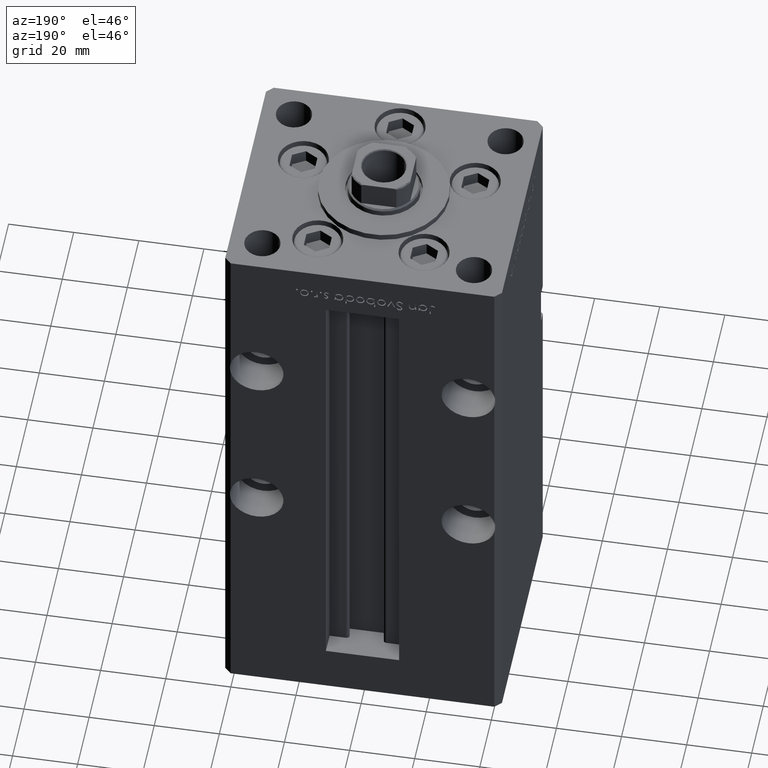
[diagram: clean part render]
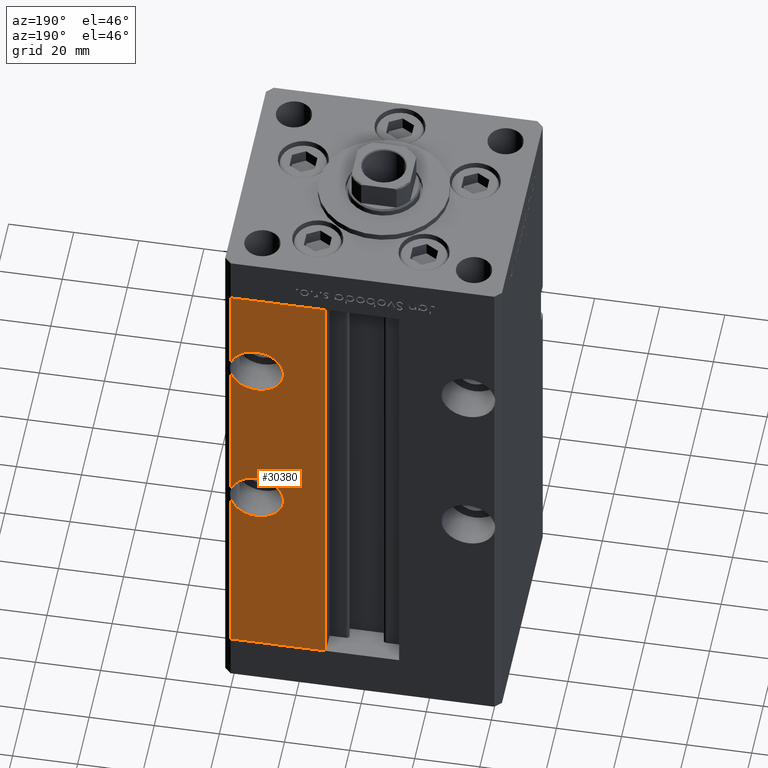
[diagram: same view with one face highlighted and labeled with its STEP entity id]
A machine part, auxiliary view. The second image highlights one B-rep face of the part: STEP entity #30380.
In plain terms, the highlighted planar face has unit normal (0, -1, 0).
Its self-contained STEP definition (entity closure, byte-faithful):
#1361 = ORIENTED_EDGE ( 'NONE', *, *, #38398, .F. ) ;
#1973 = DIRECTION ( 'NONE',  ( 0.000000000000000000, 0.000000000000000000, -1.000000000000000000 ) ) ;
#2780 = ORIENTED_EDGE ( 'NONE', *, *, #48963, .T. ) ;
#3234 = VERTEX_POINT ( 'NONE', #43189 ) ;
#3550 = EDGE_CURVE ( 'NONE', #34109, #41866, #47678, .T. ) ;
#3606 = AXIS2_PLACEMENT_3D ( 'NONE', #45879, #49654, #37024 ) ;
#3784 = VECTOR ( 'NONE', #12276, 1000.000000000000000 ) ;
#3825 = ORIENTED_EDGE ( 'NONE', *, *, #21828, .F. ) ;
#4299 = ORIENTED_EDGE ( 'NONE', *, *, #30061, .T. ) ;
#5366 = VECTOR ( 'NONE', #44624, 1000.000000000000000 ) ;
#6000 = VERTEX_POINT ( 'NONE', #23441 ) ;
#6295 = CARTESIAN_POINT ( 'NONE',  ( 32.50000000000000000, 37.50000000000000000, 63.00000000000000000 ) ) ;
#6642 = DIRECTION ( 'NONE',  ( 0.000000000000000000, 1.000000000000000000, -0.000000000000000000 ) ) ;
#6953 = VECTOR ( 'NONE', #9578, 1000.000000000000000 ) ;
#7455 = CARTESIAN_POINT ( 'NONE',  ( 40.50000000000000711, 37.50000000000000000, 148.5000000000000000 ) ) ;
#7713 = LINE ( 'NONE', #7455, #50790 ) ;
#7836 = DIRECTION ( 'NONE',  ( 0.000000000000000000, -1.000000000000000000, 0.000000000000000000 ) ) ;
#9578 = DIRECTION ( 'NONE',  ( -0.000000000000000000, -0.000000000000000000, -1.000000000000000000 ) ) ;
#10100 = ORIENTED_EDGE ( 'NONE', *, *, #38957, .F. ) ;
#11866 = DIRECTION ( 'NONE',  ( 0.000000000000000000, -0.000000000000000000, -1.000000000000000000 ) ) ;
#12276 = DIRECTION ( 'NONE',  ( -1.000000000000000000, 0.000000000000000000, 0.000000000000000000 ) ) ;
#12636 = ORIENTED_EDGE ( 'NONE', *, *, #36172, .T. ) ;
#12755 = ORIENTED_EDGE ( 'NONE', *, *, #3550, .F. ) ;
#13205 = CARTESIAN_POINT ( 'NONE',  ( 32.50000000000000000, 37.50000000000000000, 63.00000000000000000 ) ) ;
#13272 = ORIENTED_EDGE ( 'NONE', *, *, #40416, .F. ) ;
#13667 = VECTOR ( 'NONE', #35411, 1000.000000000000000 ) ;
#14131 = CARTESIAN_POINT ( 'NONE',  ( 32.50000000000000000, 37.50000000000000000, 118.0000000000000000 ) ) ;
#14189 = DIRECTION ( 'NONE',  ( 0.000000000000000000, 0.000000000000000000, -1.000000000000000000 ) ) ;
#15061 = CARTESIAN_POINT ( 'NONE',  ( 32.50000000000000000, 37.50000000000000000, 126.2500000000000000 ) ) ;
#15609 = CARTESIAN_POINT ( 'NONE',  ( 40.50000000000000711, 37.50000000000000000, 148.5000000000000000 ) ) ;
#15785 = CARTESIAN_POINT ( 'NONE',  ( 11.24999999999999112, 37.50000000000000000, 148.5000000000000000 ) ) ;
#16441 = VERTEX_POINT ( 'NONE', #38918 ) ;
#17195 = VERTEX_POINT ( 'NONE', #45202 ) ;
#17344 = AXIS2_PLACEMENT_3D ( 'NONE', #14131, #33764, #38339 ) ;
#18333 = AXIS2_PLACEMENT_3D ( 'NONE', #51029, #6642, #14189 ) ;
#19633 = VERTEX_POINT ( 'NONE', #41434 ) ;
#20203 = PLANE ( 'NONE',  #41158 ) ;
#20833 = DIRECTION ( 'NONE',  ( -0.000000000000000000, -0.000000000000000000, 1.000000000000000000 ) ) ;
#21635 = DIRECTION ( 'NONE',  ( 0.000000000000000000, 1.000000000000000000, -0.000000000000000000 ) ) ;
#21818 = ORIENTED_EDGE ( 'NONE', *, *, #41018, .T. ) ;
#21828 = EDGE_CURVE ( 'NONE', #19633, #34109, #22333, .T. ) ;
#21918 = AXIS2_PLACEMENT_3D ( 'NONE', #6295, #21635, #1973 ) ;
#21948 = CARTESIAN_POINT ( 'NONE',  ( 40.50000000000000711, 37.50000000000000000, 148.5000000000000000 ) ) ;
#22333 = CIRCLE ( 'NONE', #45523, 8.249999999999992895 ) ;
#23441 = CARTESIAN_POINT ( 'NONE',  ( 32.50000000000000000, 37.50000000000000000, 109.7499999999999858 ) ) ;
#24373 = DIRECTION ( 'NONE',  ( -0.000000000000000000, -0.000000000000000000, -1.000000000000000000 ) ) ;
#24823 = CARTESIAN_POINT ( 'NONE',  ( 40.50000000000000711, 37.50000000000000000, 148.5000000000000000 ) ) ;
#25141 = CIRCLE ( 'NONE', #46594, 8.250000000000007105 ) ;
#25386 = LINE ( 'NONE', #37765, #35346 ) ;
#26782 = CIRCLE ( 'NONE', #3606, 8.250000000000007105 ) ;
#27813 = CIRCLE ( 'NONE', #18333, 8.249999999999992895 ) ;
#27997 = FACE_OUTER_BOUND ( 'NONE', #37721, .T. ) ;
#30061 = EDGE_CURVE ( 'NONE', #38225, #34586, #44014, .T. ) ;
#30380 = ADVANCED_FACE ( 'NONE', ( #27997 ), #20203, .F. ) ;
#30953 = ORIENTED_EDGE ( 'NONE', *, *, #40275, .T. ) ;
#32715 = LINE ( 'NONE', #35963, #3784 ) ;
#33764 = DIRECTION ( 'NONE',  ( 0.000000000000000000, 1.000000000000000000, 0.000000000000000000 ) ) ;
#34034 = EDGE_CURVE ( 'NONE', #34586, #16441, #46683, .T. ) ;
#34109 = VERTEX_POINT ( 'NONE', #51263 ) ;
#34586 = VERTEX_POINT ( 'NONE', #24823 ) ;
#35346 = VECTOR ( 'NONE', #20833, 1000.000000000000000 ) ;
#35411 = DIRECTION ( 'NONE',  ( 1.000000000000000000, 0.000000000000000000, 0.000000000000000000 ) ) ;
#35844 = VERTEX_POINT ( 'NONE', #15061 ) ;
#35963 = CARTESIAN_POINT ( 'NONE',  ( -11.24999999999999822, 37.50000000000000000, 0.000000000000000000 ) ) ;
#36172 = EDGE_CURVE ( 'NONE', #3234, #41866, #7713, .T. ) ;
#37024 = DIRECTION ( 'NONE',  ( 0.000000000000000000, 0.000000000000000000, 1.000000000000000000 ) ) ;
#37362 = CARTESIAN_POINT ( 'NONE',  ( 32.50000000000000000, 37.50000000000000000, 118.0000000000000000 ) ) ;
#37376 = VERTEX_POINT ( 'NONE', #46653 ) ;
#37721 = EDGE_LOOP ( 'NONE', ( #12636, #12755, #3825, #50793, #30953, #2780, #21818, #4299, #43868, #10100, #1361, #13272 ) ) ;
#37765 = CARTESIAN_POINT ( 'NONE',  ( 11.24999999999999822, 37.50000000000000000, 0.000000000000000000 ) ) ;
#37956 = DIRECTION ( 'NONE',  ( 0.000000000000000000, 1.000000000000000000, -0.000000000000000000 ) ) ;
#38225 = VERTEX_POINT ( 'NONE', #15785 ) ;
#38339 = DIRECTION ( 'NONE',  ( 0.000000000000000000, 0.000000000000000000, 1.000000000000000000 ) ) ;
#38398 = EDGE_CURVE ( 'NONE', #6000, #35844, #46552, .T. ) ;
#38918 = CARTESIAN_POINT ( 'NONE',  ( 40.50000000000000711, 37.50000000000000000, 120.0155644370746586 ) ) ;
#38957 = EDGE_CURVE ( 'NONE', #35844, #16441, #26782, .T. ) ;
#40275 = EDGE_CURVE ( 'NONE', #17195, #41936, #45157, .T. ) ;
#40416 = EDGE_CURVE ( 'NONE', #3234, #6000, #25141, .T. ) ;
#41018 = EDGE_CURVE ( 'NONE', #37376, #38225, #25386, .T. ) ;
#41158 = AXIS2_PLACEMENT_3D ( 'NONE', #45198, #7836, #11866 ) ;
#41434 = CARTESIAN_POINT ( 'NONE',  ( 32.50000000000000000, 37.50000000000000000, 54.75000000000000711 ) ) ;
#41661 = DIRECTION ( 'NONE',  ( 0.000000000000000000, 1.000000000000000000, 0.000000000000000000 ) ) ;
#41866 = VERTEX_POINT ( 'NONE', #43923 ) ;
#41936 = VERTEX_POINT ( 'NONE', #42003 ) ;
#42003 = CARTESIAN_POINT ( 'NONE',  ( 40.50000000000000711, 37.50000000000000000, 0.000000000000000000 ) ) ;
#43189 = CARTESIAN_POINT ( 'NONE',  ( 40.50000000000000711, 37.50000000000000000, 115.9844355629253272 ) ) ;
#43868 = ORIENTED_EDGE ( 'NONE', *, *, #34034, .T. ) ;
#43923 = CARTESIAN_POINT ( 'NONE',  ( 40.50000000000000711, 37.50000000000000000, 65.01556443707460176 ) ) ;
#44014 = LINE ( 'NONE', #52624, #13667 ) ;
#44624 = DIRECTION ( 'NONE',  ( -0.000000000000000000, -0.000000000000000000, -1.000000000000000000 ) ) ;
#45157 = LINE ( 'NONE', #15609, #5366 ) ;
#45198 = CARTESIAN_POINT ( 'NONE',  ( -11.24999999999999822, 37.50000000000000000, 148.5000000000000000 ) ) ;
#45202 = CARTESIAN_POINT ( 'NONE',  ( 40.50000000000000711, 37.50000000000000000, 60.98443556292540535 ) ) ;
#45523 = AXIS2_PLACEMENT_3D ( 'NONE', #13205, #37956, #46008 ) ;
#45879 = CARTESIAN_POINT ( 'NONE',  ( 32.50000000000000000, 37.50000000000000000, 118.0000000000000000 ) ) ;
#46008 = DIRECTION ( 'NONE',  ( 0.000000000000000000, 0.000000000000000000, -1.000000000000000000 ) ) ;
#46552 = CIRCLE ( 'NONE', #17344, 8.250000000000007105 ) ;
#46594 = AXIS2_PLACEMENT_3D ( 'NONE', #37362, #41661, #50524 ) ;
#46653 = CARTESIAN_POINT ( 'NONE',  ( 11.24999999999999822, 37.50000000000000000, 0.000000000000000000 ) ) ;
#46683 = LINE ( 'NONE', #21948, #6953 ) ;
#47678 = CIRCLE ( 'NONE', #21918, 8.249999999999992895 ) ;
#48128 = EDGE_CURVE ( 'NONE', #17195, #19633, #27813, .T. ) ;
#48963 = EDGE_CURVE ( 'NONE', #41936, #37376, #32715, .T. ) ;
#49654 = DIRECTION ( 'NONE',  ( 0.000000000000000000, 1.000000000000000000, 0.000000000000000000 ) ) ;
#50524 = DIRECTION ( 'NONE',  ( 0.000000000000000000, 0.000000000000000000, 1.000000000000000000 ) ) ;
#50790 = VECTOR ( 'NONE', #24373, 1000.000000000000000 ) ;
#50793 = ORIENTED_EDGE ( 'NONE', *, *, #48128, .F. ) ;
#51029 = CARTESIAN_POINT ( 'NONE',  ( 32.50000000000000000, 37.50000000000000000, 63.00000000000000000 ) ) ;
#51263 = CARTESIAN_POINT ( 'NONE',  ( 32.50000000000000000, 37.50000000000000000, 71.25000000000000000 ) ) ;
#52624 = CARTESIAN_POINT ( 'NONE',  ( -11.24999999999999822, 37.50000000000000000, 148.5000000000000000 ) ) ;